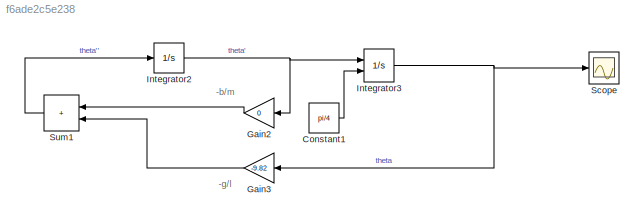
MODEL slx_f6ade2c5e238
KIND model
CONFIG AbsTol = auto
CONFIG EnableMultiTasking = off
CONFIG FixedStep = auto
CONFIG MaxStep = auto
CONFIG MinStep = auto
CONFIG RelTol = 1e-3
CONFIG SampleTimeConstraint = Unconstrained
CONFIG Solver = VariableStepAuto
CONFIG SolverName = VariableStepAuto
CONFIG StartTime = 0.0
CONFIG StopTime = 100.0
BLOCK [Constant] Constant1
  Value = pi/4
BLOCK [Gain] Gain2
  Gain = 0
  NameLocation = top
BLOCK [Gain] Gain3
  Gain = -9.82
  NameLocation = top
BLOCK [Integrator] Integrator2
  Ports = [1, 1]
BLOCK [Integrator] Integrator3
  InitialConditionSource = external
  Ports = [2, 1]
BLOCK [Scope] Scope
  Floating = off
  NumInputPorts = 1
  Ports = [1]
  ScopeSpecificationString = Simulink.scopes.TimeScopeBlockCfg('CurrentConfiguration', extmgr.ConfigurationSet(extmgr.Configuration('Core','General UI',true),extmgr.Configuration('Core','Source UI',true),extmgr.Configuration('Sources','WiredSimulink',true),extmgr.Configuration('Visuals','Time Domain',true,'SerializedDisplays',{struct('MinYLimReal','-0.98139','MaxYLimReal','0.98171','YLabelReal','','MinYLimMag','0.00000','MaxY...<+1375ch>
BLOCK [Sum] Sum1
  IconShape = rectangular
  Inputs = |++
  NameLocation = top
  Ports = [2, 1]
ANNOTATION (root): -b/m
ANNOTATION (root): -g/l
LINE Constant1:1 -> Integrator3:2
LINE Gain2:1 -> Sum1:1
LINE Gain3:1 -> Sum1:2
NET Integrator2:1 -> Gain2:1, Integrator3:1
NET Integrator3:1 -> Gain3:1, Scope:1
LINE Sum1:1 -> Integrator2:1
note: NET lines group one-source signal fan-out (src -> all destinations, sorted); 1:1 wires keep LINE
